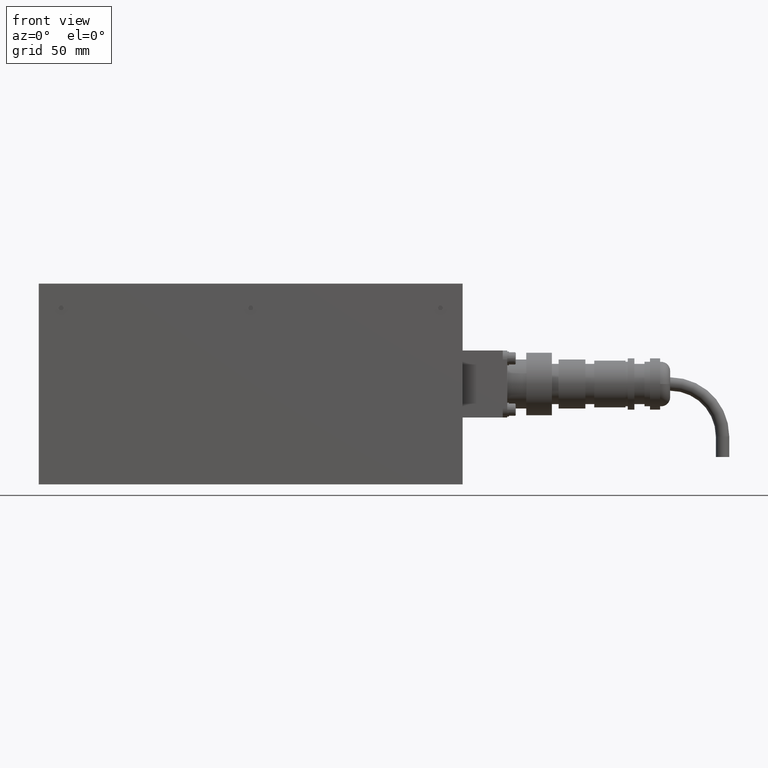
[diagram: clean part render]
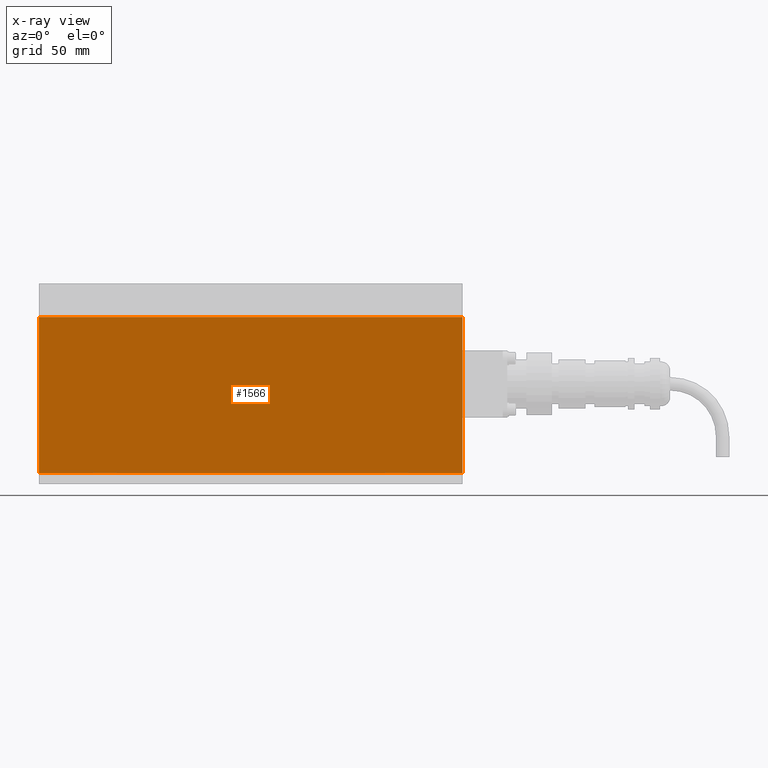
[diagram: x-ray — body ghosted, one internal face saturated and labeled with its STEP entity id]
A machine part, front view, then the same camera in x-ray: the body is ghosted and one INTERNAL B-rep face — a face not visible from any outside direction — is saturated and labeled: STEP entity #1566.
In plain terms, the highlighted planar face has unit normal (0, 1, 0).
Its self-contained STEP definition (entity closure, byte-faithful):
#1503=CARTESIAN_POINT('',(88.042906985577417,-124.589066365486590,74.500000000000000));
#1504=VERTEX_POINT('',#1503);
#1519=CARTESIAN_POINT('',(-101.957093014422580,-124.589066365486590,74.500000000000000));
#1520=VERTEX_POINT('',#1519);
#1527=CARTESIAN_POINT('',(-101.957093014422580,-124.589066365486590,74.500000000000000));
#1528=DIRECTION('',(1.0,0.0,0.0));
#1529=VECTOR('',#1528,190.0);
#1530=LINE('',#1527,#1529);
#1531=EDGE_CURVE('',#1520,#1504,#1530,.T.);
#1536=CARTESIAN_POINT('',(-101.957093014422580,-124.589066365486590,74.500000000000000));
#1537=DIRECTION('',(0.0,1.0,0.0));
#1538=DIRECTION('',(0.0,0.0,1.0));
#1539=AXIS2_PLACEMENT_3D('',#1536,#1537,#1538);
#1540=PLANE('',#1539);
#1541=CARTESIAN_POINT('',(88.042906985577417,-124.589066365486600,4.500000000000007));
#1542=VERTEX_POINT('',#1541);
#1543=CARTESIAN_POINT('',(88.042906985577417,-124.589066365486590,74.500000000000000));
#1544=DIRECTION('',(0.0,0.0,-1.0));
#1545=VECTOR('',#1544,70.0);
#1546=LINE('',#1543,#1545);
#1547=EDGE_CURVE('',#1504,#1542,#1546,.T.);
#1548=ORIENTED_EDGE('',*,*,#1547,.F.);
#1549=ORIENTED_EDGE('',*,*,#1531,.F.);
#1550=CARTESIAN_POINT('',(-101.957093014422580,-124.589066365486600,4.500000000000007));
#1551=VERTEX_POINT('',#1550);
#1552=CARTESIAN_POINT('',(-101.957093014422580,-124.589066365486600,4.500000000000007));
#1553=DIRECTION('',(0.0,0.0,1.0));
#1554=VECTOR('',#1553,70.0);
#1555=LINE('',#1552,#1554);
#1556=EDGE_CURVE('',#1551,#1520,#1555,.T.);
#1557=ORIENTED_EDGE('',*,*,#1556,.F.);
#1558=CARTESIAN_POINT('',(-101.957093014422580,-124.589066365486600,4.500000000000007));
#1559=DIRECTION('',(1.0,0.0,0.0));
#1560=VECTOR('',#1559,190.0);
#1561=LINE('',#1558,#1560);
#1562=EDGE_CURVE('',#1551,#1542,#1561,.T.);
#1563=ORIENTED_EDGE('',*,*,#1562,.T.);
#1564=EDGE_LOOP('',(#1548,#1549,#1557,#1563));
#1565=FACE_OUTER_BOUND('',#1564,.T.);
#1566=ADVANCED_FACE('',(#1565),#1540,.F.);